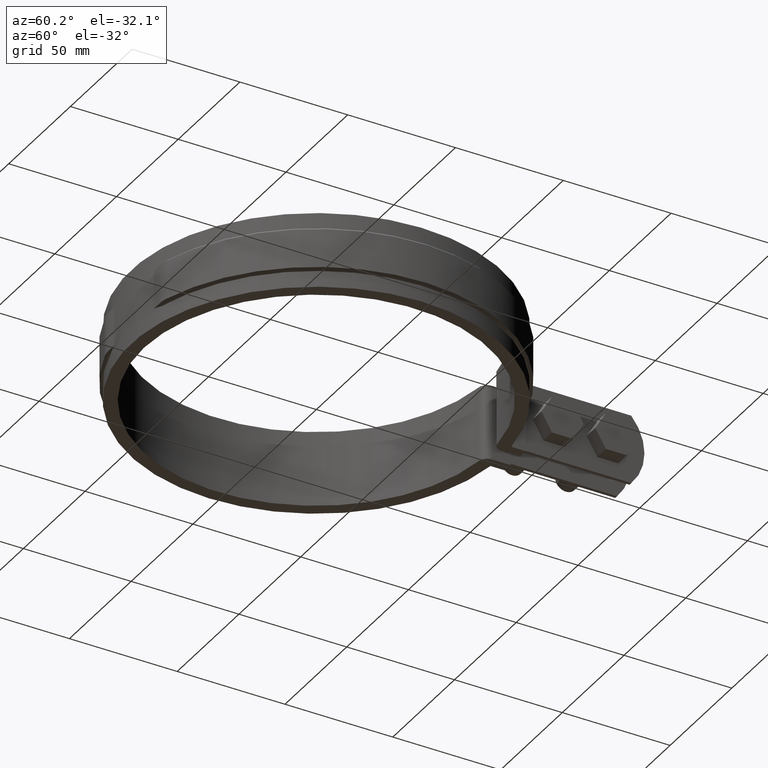
[diagram: clean part render]
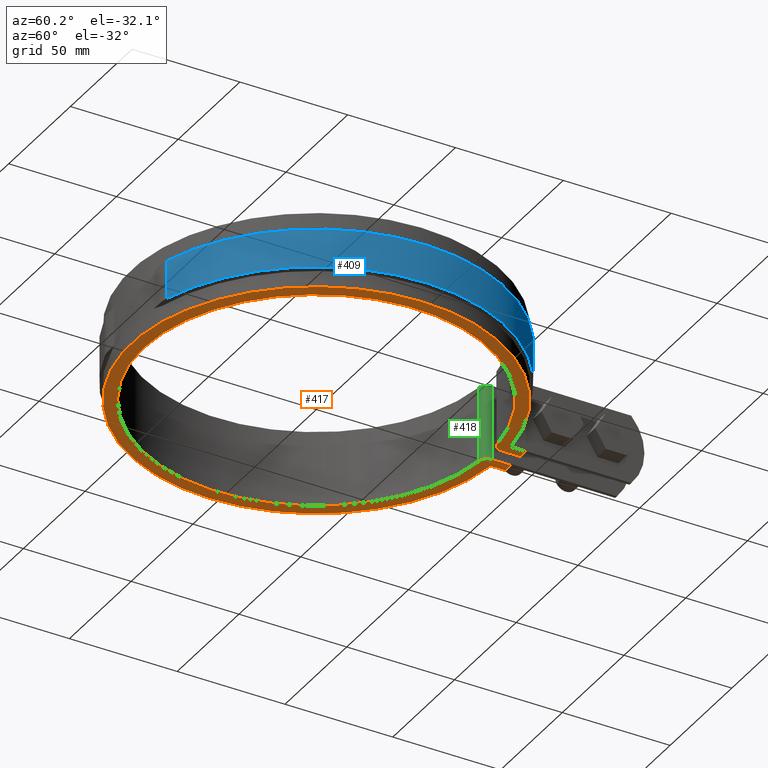
[diagram: same view with three faces highlighted in distinct colors, each labeled with its STEP entity id]
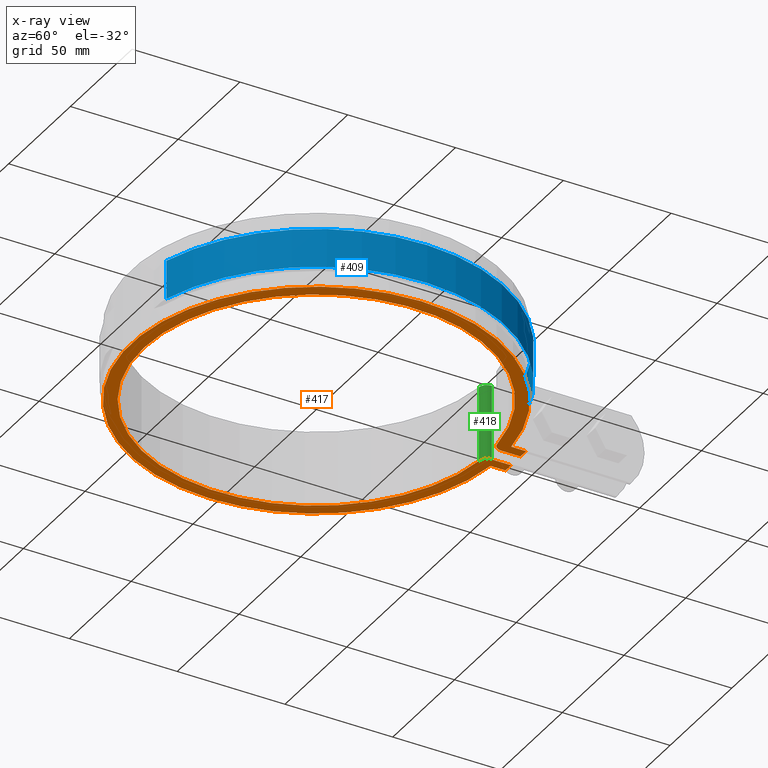
[diagram: x-ray of the same camera — body ghosted, the three highlighted faces saturated]
A machine part, auxiliary view with three faces highlighted in distinct colors.
The next image is the same camera in x-ray (body ghosted, the three faces saturated) — at least one of them is partly hidden behind the body in this view.
Their STEP definitions:

[orange] entity #417 — the highlighted planar face has unit normal (0, 0, 1).
#417 = ADVANCED_FACE( '', ( #694 ), #695, .F. );
#694 = FACE_OUTER_BOUND( '', #1775, .T. );
#695 = PLANE( '', #1776 );
#1775 = EDGE_LOOP( '', ( #4191, #4192, #4193, #4194, #4195, #4196, #4197, #4198, #4199, #4200 ) );
#1776 = AXIS2_PLACEMENT_3D( '', #4201, #4202, #4203 );
#4191 = ORIENTED_EDGE( '', *, *, #4751, .F. );
#4192 = ORIENTED_EDGE( '', *, *, #4882, .F. );
#4193 = ORIENTED_EDGE( '', *, *, #4883, .F. );
#4194 = ORIENTED_EDGE( '', *, *, #4884, .F. );
#4195 = ORIENTED_EDGE( '', *, *, #4841, .F. );
#4196 = ORIENTED_EDGE( '', *, *, #4813, .F. );
#4197 = ORIENTED_EDGE( '', *, *, #4885, .F. );
#4198 = ORIENTED_EDGE( '', *, *, #4832, .F. );
#4199 = ORIENTED_EDGE( '', *, *, #4839, .F. );
#4200 = ORIENTED_EDGE( '', *, *, #4743, .F. );
#4201 = CARTESIAN_POINT( '', ( 0.000000000000000, 0.000000000000000, -33.5000000000000 ) );
#4202 = DIRECTION( '', ( 0.000000000000000, 0.000000000000000, 1.00000000000000 ) );
#4203 = DIRECTION( '', ( 0.000000000000000, 1.00000000000000, 0.000000000000000 ) );
#4743 = EDGE_CURVE( '', #5231, #5233, #5234, .T. );
#4751 = EDGE_CURVE( '', #5246, #5231, #5248, .T. );
#4813 = EDGE_CURVE( '', #5353, #5355, #5356, .T. );
#4832 = EDGE_CURVE( '', #5389, #5360, #5391, .T. );
#4839 = EDGE_CURVE( '', #5233, #5389, #5402, .T. );
#4841 = EDGE_CURVE( '', #5355, #5405, #5406, .T. );
#4882 = EDGE_CURVE( '', #5469, #5246, #5470, .T. );
#4883 = EDGE_CURVE( '', #5471, #5469, #5472, .T. );
#4884 = EDGE_CURVE( '', #5405, #5471, #5473, .T. );
#4885 = EDGE_CURVE( '', #5360, #5353, #5474, .T. );
#5231 = VERTEX_POINT( '', #6995 );
#5233 = VERTEX_POINT( '', #6998 );
#5234 = LINE( '', #6999, #7000 );
#5246 = VERTEX_POINT( '', #7018 );
#5248 = LINE( '', #7021, #7022 );
#5353 = VERTEX_POINT( '', #8142 );
#5355 = VERTEX_POINT( '', #8145 );
#5356 = LINE( '', #8146, #8147 );
#5360 = VERTEX_POINT( '', #8154 );
#5389 = VERTEX_POINT( '', #8188 );
#5391 = CIRCLE( '', #8191, 86.0000000000000 );
#5402 = LINE( '', #8212, #8213 );
#5405 = VERTEX_POINT( '', #8217 );
#5406 = LINE( '', #8218, #8219 );
#5469 = VERTEX_POINT( '', #8303 );
#5470 = CIRCLE( '', #8304, 4.00000000000000 );
#5471 = VERTEX_POINT( '', #8305 );
#5472 = CIRCLE( '', #8306, 80.0000000000000 );
#5473 = CIRCLE( '', #8307, 4.00000000000000 );
#5474 = LINE( '', #8308, #8309 );
#6995 = CARTESIAN_POINT( '', ( -3.80000000000000, 92.5000000000000, -33.5000000000000 ) );
#6998 = CARTESIAN_POINT( '', ( -8.40000000000002, 92.5000000000000, -33.5000000000000 ) );
#6999 = CARTESIAN_POINT( '', ( -3.80000000000000, 92.5000000000000, -33.5000000000000 ) );
#7000 = VECTOR( '', #8783, 1000.00000000000 );
#7018 = CARTESIAN_POINT( '', ( -3.79999999999999, 83.6370731195204, -33.5000000000000 ) );
#7021 = CARTESIAN_POINT( '', ( -3.79999999999999, 83.6370731195204, -33.5000000000000 ) );
#7022 = VECTOR( '', #8791, 1000.00000000000 );
#8142 = CARTESIAN_POINT( '', ( 8.40000000000000, 92.5000000000000, -33.5000000000000 ) );
#8145 = CARTESIAN_POINT( '', ( 3.80000000000003, 92.5000000000000, -33.5000000000000 ) );
#8146 = CARTESIAN_POINT( '', ( 8.40000000000002, 92.5000000000000, -33.5000000000000 ) );
#8147 = VECTOR( '', #8849, 1000.00000000000 );
#8154 = CARTESIAN_POINT( '', ( 8.40000000000003, 85.5887843119646, -33.5000000000000 ) );
#8188 = CARTESIAN_POINT( '', ( -8.40000000000000, 85.5887843119646, -33.5000000000000 ) );
#8191 = AXIS2_PLACEMENT_3D( '', #8886, #8887, #8888 );
#8212 = CARTESIAN_POINT( '', ( -8.40000000000000, 92.5000000000000, -33.5000000000000 ) );
#8213 = VECTOR( '', #8893, 1000.00000000000 );
#8217 = CARTESIAN_POINT( '', ( 3.80000000000002, 83.6370731195204, -33.5000000000000 ) );
#8218 = CARTESIAN_POINT( '', ( 3.80000000000002, 92.5000000000000, -33.5000000000000 ) );
#8219 = VECTOR( '', #8895, 1000.00000000000 );
#8303 = CARTESIAN_POINT( '', ( -7.42857142857141, 79.6543553519242, -33.5000000000000 ) );
#8304 = AXIS2_PLACEMENT_3D( '', #8974, #8975, #8976 );
#8305 = CARTESIAN_POINT( '', ( 7.42857142857145, 79.6543553519242, -33.5000000000000 ) );
#8306 = AXIS2_PLACEMENT_3D( '', #8977, #8978, #8979 );
#8307 = AXIS2_PLACEMENT_3D( '', #8980, #8981, #8982 );
#8308 = CARTESIAN_POINT( '', ( 8.40000000000000, 85.5887843119646, -33.5000000000000 ) );
#8309 = VECTOR( '', #8983, 1000.00000000000 );
#8783 = DIRECTION( '', ( -1.00000000000000, 0.000000000000000, 0.000000000000000 ) );
#8791 = DIRECTION( '', ( 6.10365667473321E-017, 1.00000000000000, 0.000000000000000 ) );
#8849 = DIRECTION( '', ( -1.00000000000000, 0.000000000000000, 0.000000000000000 ) );
#8886 = CARTESIAN_POINT( '', ( 0.000000000000000, 0.000000000000000, -33.5000000000000 ) );
#8887 = DIRECTION( '', ( 0.000000000000000, 0.000000000000000, 1.00000000000000 ) );
#8888 = DIRECTION( '', ( 1.00000000000000, 0.000000000000000, 0.000000000000000 ) );
#8893 = DIRECTION( '', ( -6.42490176287706E-017, -1.00000000000000, 0.000000000000000 ) );
#8895 = DIRECTION( '', ( -6.10365667473321E-017, -1.00000000000000, 0.000000000000000 ) );
#8974 = CARTESIAN_POINT( '', ( -7.79999999999999, 83.6370731195204, -33.5000000000000 ) );
#8975 = DIRECTION( '', ( 0.000000000000000, 0.000000000000000, 1.00000000000000 ) );
#8976 = DIRECTION( '', ( 1.00000000000000, 0.000000000000000, 0.000000000000000 ) );
#8977 = CARTESIAN_POINT( '', ( 0.000000000000000, 0.000000000000000, -33.5000000000000 ) );
#8978 = DIRECTION( '', ( 0.000000000000000, 0.000000000000000, -1.00000000000000 ) );
#8979 = DIRECTION( '', ( 1.00000000000000, 0.000000000000000, 0.000000000000000 ) );
#8980 = CARTESIAN_POINT( '', ( 7.80000000000001, 83.6370731195204, -33.5000000000000 ) );
#8981 = DIRECTION( '', ( 0.000000000000000, 0.000000000000000, 1.00000000000000 ) );
#8982 = DIRECTION( '', ( -1.00000000000000, 0.000000000000000, 0.000000000000000 ) );
#8983 = DIRECTION( '', ( 6.42490176287706E-017, 1.00000000000000, 0.000000000000000 ) );

[blue] entity #409 — the highlighted cylindrical surface (partial cylindrical patch) has radius 87.5 mm, axis along (0, 0, -1).
#409 = ADVANCED_FACE( '', ( #678 ), #679, .T. );
#678 = FACE_OUTER_BOUND( '', #1759, .T. );
#679 = CYLINDRICAL_SURFACE( '', #1760, 87.5000000000000 );
#1759 = EDGE_LOOP( '', ( #4127, #4128, #4129, #4130 ) );
#1760 = AXIS2_PLACEMENT_3D( '', #4131, #4132, #4133 );
#4127 = ORIENTED_EDGE( '', *, *, #4868, .T. );
#4128 = ORIENTED_EDGE( '', *, *, #4869, .T. );
#4129 = ORIENTED_EDGE( '', *, *, #4870, .F. );
#4130 = ORIENTED_EDGE( '', *, *, #4871, .T. );
#4131 = CARTESIAN_POINT( '', ( 3.46944695195361E-015, 1.38777878078145E-014, -26.0000000000000 ) );
#4132 = DIRECTION( '', ( 0.000000000000000, 0.000000000000000, -1.00000000000000 ) );
#4133 = DIRECTION( '', ( 0.284686447455866, -0.958620689655173, 0.000000000000000 ) );
#4868 = EDGE_CURVE( '', #5449, #5450, #5451, .T. );
#4869 = EDGE_CURVE( '', #5450, #5452, #5453, .F. );
#4870 = EDGE_CURVE( '', #5454, #5452, #5455, .T. );
#4871 = EDGE_CURVE( '', #5454, #5449, #5456, .T. );
#5449 = VERTEX_POINT( '', #8276 );
#5450 = VERTEX_POINT( '', #8277 );
#5451 = LINE( '', #8278, #8279 );
#5452 = VERTEX_POINT( '', #8280 );
#5453 = CIRCLE( '', #8281, 87.5000000000000 );
#5454 = VERTEX_POINT( '', #8282 );
#5455 = LINE( '', #8283, #8284 );
#5456 = CIRCLE( '', #8285, 87.5000000000000 );
#8276 = CARTESIAN_POINT( '', ( 8.40000000000004, 87.0958667216763, -25.0000000000000 ) );
#8277 = CARTESIAN_POINT( '', ( 8.40000000000004, 87.0958667216763, -7.00000000000000 ) );
#8278 = CARTESIAN_POINT( '', ( 8.40000000000004, 87.0958667216763, -26.0000000000000 ) );
#8279 = VECTOR( '', #8946, 1000.00000000000 );
#8280 = CARTESIAN_POINT( '', ( 24.9100641523883, -83.8793103448276, -7.00000000000000 ) );
#8281 = AXIS2_PLACEMENT_3D( '', #8947, #8948, #8949 );
#8282 = CARTESIAN_POINT( '', ( 24.9100641523883, -83.8793103448276, -25.0000000000000 ) );
#8283 = CARTESIAN_POINT( '', ( 24.9100641523883, -83.8793103448276, -26.0000000000000 ) );
#8284 = VECTOR( '', #8950, 1000.00000000000 );
#8285 = AXIS2_PLACEMENT_3D( '', #8951, #8952, #8953 );
#8946 = DIRECTION( '', ( 0.000000000000000, 0.000000000000000, 1.00000000000000 ) );
#8947 = CARTESIAN_POINT( '', ( 3.46944695195361E-015, 1.38777878078145E-014, -7.00000000000000 ) );
#8948 = DIRECTION( '', ( 0.000000000000000, 0.000000000000000, 1.00000000000000 ) );
#8949 = DIRECTION( '', ( 1.00000000000000, 0.000000000000000, 0.000000000000000 ) );
#8950 = DIRECTION( '', ( 0.000000000000000, 0.000000000000000, 1.00000000000000 ) );
#8951 = CARTESIAN_POINT( '', ( 3.46944695195361E-015, 1.38777878078145E-014, -25.0000000000000 ) );
#8952 = DIRECTION( '', ( 0.000000000000000, 0.000000000000000, 1.00000000000000 ) );
#8953 = DIRECTION( '', ( 1.00000000000000, 0.000000000000000, 0.000000000000000 ) );

[green] entity #418 — the highlighted cylindrical surface (edge-blend (fillet) strip) has radius 4 mm, axis along (0, 0, -1).
#418 = ADVANCED_FACE( '', ( #696 ), #697, .T. );
#696 = FACE_OUTER_BOUND( '', #1777, .T. );
#697 = CYLINDRICAL_SURFACE( '', #1778, 4.00000000000000 );
#1777 = EDGE_LOOP( '', ( #4204, #4205, #4206, #4207 ) );
#1778 = AXIS2_PLACEMENT_3D( '', #4208, #4209, #4210 );
#4204 = ORIENTED_EDGE( '', *, *, #4881, .F. );
#4205 = ORIENTED_EDGE( '', *, *, #4886, .F. );
#4206 = ORIENTED_EDGE( '', *, *, #4882, .T. );
#4207 = ORIENTED_EDGE( '', *, *, #4750, .T. );
#4208 = CARTESIAN_POINT( '', ( -7.79999999999999, 83.6370731195204, -33.5000000000000 ) );
#4209 = DIRECTION( '', ( 0.000000000000000, 0.000000000000000, -1.00000000000000 ) );
#4210 = DIRECTION( '', ( 0.000000000000000, 1.00000000000000, 0.000000000000000 ) );
#4750 = EDGE_CURVE( '', #5246, #5244, #5247, .T. );
#4881 = EDGE_CURVE( '', #5466, #5244, #5468, .T. );
#4882 = EDGE_CURVE( '', #5469, #5246, #5470, .T. );
#4886 = EDGE_CURVE( '', #5469, #5466, #5475, .T. );
#5244 = VERTEX_POINT( '', #7015 );
#5246 = VERTEX_POINT( '', #7018 );
#5247 = LINE( '', #7019, #7020 );
#5466 = VERTEX_POINT( '', #8300 );
#5468 = CIRCLE( '', #8302, 4.00000000000000 );
#5469 = VERTEX_POINT( '', #8303 );
#5470 = CIRCLE( '', #8304, 4.00000000000000 );
#5475 = LINE( '', #8310, #8311 );
#7015 = CARTESIAN_POINT( '', ( -3.79999999999999, 83.6370731195204, 1.50000000000000 ) );
#7018 = CARTESIAN_POINT( '', ( -3.79999999999999, 83.6370731195204, -33.5000000000000 ) );
#7019 = CARTESIAN_POINT( '', ( -3.79999999999999, 83.6370731195204, -33.5000000000000 ) );
#7020 = VECTOR( '', #8790, 1000.00000000000 );
#8300 = CARTESIAN_POINT( '', ( -7.42857142857141, 79.6543553519242, 1.50000000000000 ) );
#8302 = AXIS2_PLACEMENT_3D( '', #8971, #8972, #8973 );
#8303 = CARTESIAN_POINT( '', ( -7.42857142857141, 79.6543553519242, -33.5000000000000 ) );
#8304 = AXIS2_PLACEMENT_3D( '', #8974, #8975, #8976 );
#8310 = CARTESIAN_POINT( '', ( -7.42857142857141, 79.6543553519242, -33.5000000000000 ) );
#8311 = VECTOR( '', #8984, 1000.00000000000 );
#8790 = DIRECTION( '', ( 0.000000000000000, 0.000000000000000, 1.00000000000000 ) );
#8971 = CARTESIAN_POINT( '', ( -7.79999999999999, 83.6370731195204, 1.50000000000000 ) );
#8972 = DIRECTION( '', ( 0.000000000000000, 0.000000000000000, 1.00000000000000 ) );
#8973 = DIRECTION( '', ( 1.00000000000000, 0.000000000000000, 0.000000000000000 ) );
#8974 = CARTESIAN_POINT( '', ( -7.79999999999999, 83.6370731195204, -33.5000000000000 ) );
#8975 = DIRECTION( '', ( 0.000000000000000, 0.000000000000000, 1.00000000000000 ) );
#8976 = DIRECTION( '', ( 1.00000000000000, 0.000000000000000, 0.000000000000000 ) );
#8984 = DIRECTION( '', ( 0.000000000000000, 0.000000000000000, 1.00000000000000 ) );